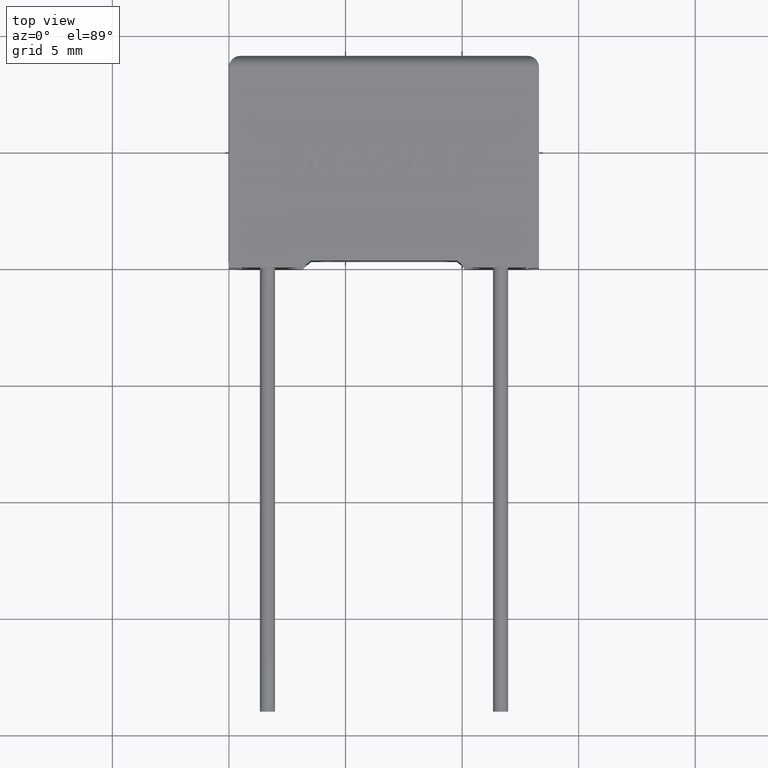
[diagram: clean part render]
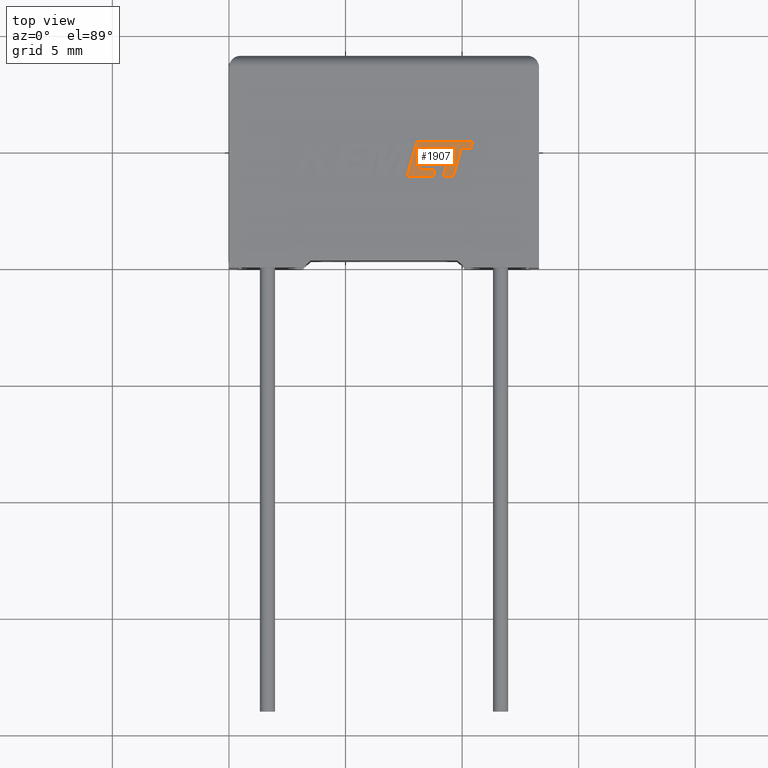
[diagram: same view with one face highlighted and labeled with its STEP entity id]
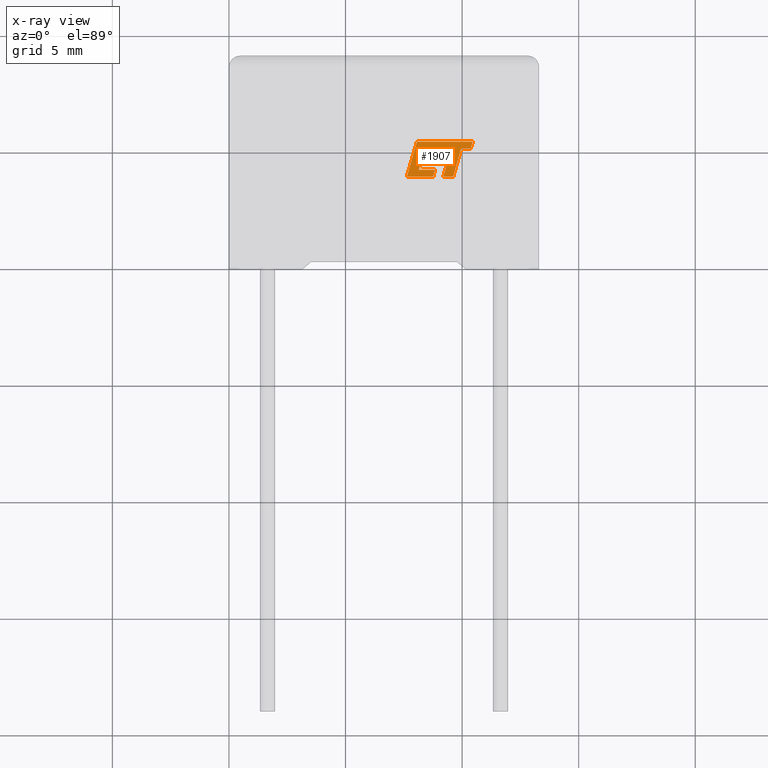
[diagram: x-ray of the same camera — body ghosted, the highlighted face saturated]
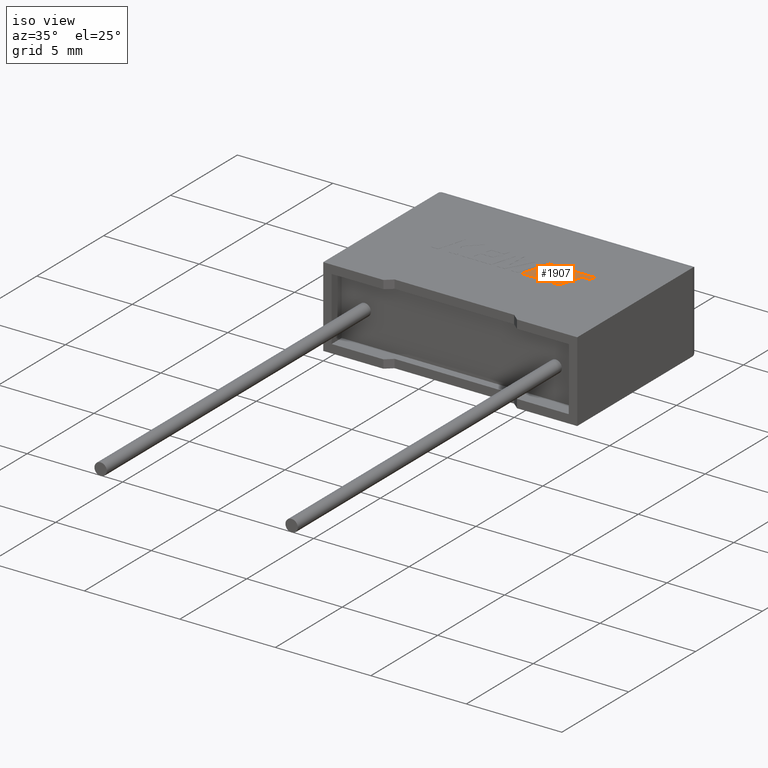
[diagram: same view with one face highlighted and labeled with its STEP entity id]
A machine part, top view. The second image highlights one B-rep face of the part: STEP entity #1907.
The next image is the same camera in x-ray: the body ghosted, the highlighted face saturated — about 0% of this face is hidden behind the body in this view.
A second angle (iso view) of the same face is appended — the face is thin or edge-on in the first view.
In plain terms, the highlighted planar face has unit normal (0, 0, 1).
Its self-contained STEP definition (entity closure, byte-faithful):
#2 = CARTESIAN_POINT ( 'NONE',  ( 9.539431927669216549, 5.117807899964921248, 4.205000000000000071 ) ) ;
#23 = DIRECTION ( 'NONE',  ( 1.000000000000000000, 1.002616505299178603E-15, 0.000000000000000000 ) ) ;
#29 = DIRECTION ( 'NONE',  ( -1.000000000000000000, 0.000000000000000000, 0.000000000000000000 ) ) ;
#40 = VERTEX_POINT ( 'NONE', #79 ) ;
#47 = CARTESIAN_POINT ( 'NONE',  ( 8.323244228363554598, 4.844748178117783688, 4.205000000000000071 ) ) ;
#51 = VERTEX_POINT ( 'NONE', #2901 ) ;
#79 = CARTESIAN_POINT ( 'NONE',  ( 10.45423612614161257, 5.405443973106108579, 4.205000000000000071 ) ) ;
#123 = EDGE_CURVE ( 'NONE', #1462, #1234, #1390, .T. ) ;
#141 = CARTESIAN_POINT ( 'NONE',  ( 9.963695248789788295, 5.117807899961216656, 4.205000000000000071 ) ) ;
#162 = EDGE_CURVE ( 'NONE', #40, #2879, #1177, .T. ) ;
#171 = ORIENTED_EDGE ( 'NONE', *, *, #315, .T. ) ;
#177 = ORIENTED_EDGE ( 'NONE', *, *, #587, .T. ) ;
#260 = CARTESIAN_POINT ( 'NONE',  ( 8.759800966950468393, 3.915729999999954192, 4.205000000000000071 ) ) ;
#276 = DIRECTION ( 'NONE',  ( 0.2762033010290175783, 0.9610992334304890861, 0.000000000000000000 ) ) ;
#290 = CARTESIAN_POINT ( 'NONE',  ( 8.840238147259444901, 4.199203342610755563, 4.205000000000000071 ) ) ;
#315 = EDGE_CURVE ( 'NONE', #877, #2001, #468, .T. ) ;
#351 = VECTOR ( 'NONE', #2455, 1000.000000000000227 ) ;
#354 = VECTOR ( 'NONE', #960, 1000.000000000000000 ) ;
#356 = CARTESIAN_POINT ( 'NONE',  ( 8.062772351167032170, 5.405443973106108579, 4.205000000000000071 ) ) ;
#361 = LINE ( 'NONE', #1290, #495 ) ;
#421 = EDGE_LOOP ( 'NONE', ( #3045, #2244, #1407, #2097, #1427, #177, #1591, #1226, #1214, #1523, #2748, #2023, #2600, #2725, #171, #2165, #891 ) ) ;
#440 = EDGE_CURVE ( 'NONE', #1071, #2858, #1776, .T. ) ;
#445 = VECTOR ( 'NONE', #23, 1000.000000000000000 ) ;
#447 = AXIS2_PLACEMENT_3D ( 'NONE', #1948, #2673, #510 ) ;
#464 = CARTESIAN_POINT ( 'NONE',  ( 8.323244228363554598, 4.844748178117783688, 4.205000000000000071 ) ) ;
#468 = LINE ( 'NONE', #1837, #2015 ) ;
#474 = LINE ( 'NONE', #1897, #354 ) ;
#475 = FACE_OUTER_BOUND ( 'NONE', #421, .T. ) ;
#495 = VECTOR ( 'NONE', #2723, 1000.000000000000000 ) ;
#510 = DIRECTION ( 'NONE',  ( 1.000000000000000000, 0.000000000000000000, 0.000000000000000000 ) ) ;
#522 = CARTESIAN_POINT ( 'NONE',  ( 7.634278353863061639, 3.915729999999953304, 4.205000000000000071 ) ) ;
#539 = CARTESIAN_POINT ( 'NONE',  ( 8.403871653158185850, 5.121834741574651240, 4.205000000000000071 ) ) ;
#545 = VECTOR ( 'NONE', #694, 1000.000000000000114 ) ;
#565 = CARTESIAN_POINT ( 'NONE',  ( 8.244673255864219286, 4.569400992813650753, 4.205000000000000071 ) ) ;
#584 = DIRECTION ( 'NONE',  ( 1.000000000000000000, 5.694109626320595965E-16, 0.000000000000000000 ) ) ;
#587 = EDGE_CURVE ( 'NONE', #2794, #1246, #813, .T. ) ;
#607 = DIRECTION ( 'NONE',  ( 0.9999891854650020395, -0.004650693823678666954, 0.000000000000000000 ) ) ;
#615 = DIRECTION ( 'NONE',  ( 1.000000000000000000, 0.000000000000000000, 0.000000000000000000 ) ) ;
#694 = DIRECTION ( 'NONE',  ( 0.2729786930694848013, 0.9620200793798827643, 0.000000000000000000 ) ) ;
#702 = VECTOR ( 'NONE', #2236, 1000.000000000000000 ) ;
#723 = CARTESIAN_POINT ( 'NONE',  ( 8.759800966950468393, 3.915729999999954192, 4.205000000000000071 ) ) ;
#738 = CARTESIAN_POINT ( 'NONE',  ( 8.962547232894863214, 4.844748178117783688, 4.205000000000000071 ) ) ;
#741 = VECTOR ( 'NONE', #29, 1000.000000000000000 ) ;
#752 = VECTOR ( 'NONE', #584, 1000.000000000000000 ) ;
#774 = DIRECTION ( 'NONE',  ( -1.000000000000000000, 0.000000000000000000, 0.000000000000000000 ) ) ;
#788 = EDGE_CURVE ( 'NONE', #2001, #2890, #361, .T. ) ;
#813 = LINE ( 'NONE', #141, #351 ) ;
#836 = CARTESIAN_POINT ( 'NONE',  ( 8.883885667783385287, 4.569400992813651641, 4.205000000000000071 ) ) ;
#877 = VERTEX_POINT ( 'NONE', #836 ) ;
#878 = EDGE_CURVE ( 'NONE', #51, #2782, #1739, .T. ) ;
#891 = ORIENTED_EDGE ( 'NONE', *, *, #1667, .T. ) ;
#938 = EDGE_CURVE ( 'NONE', #2858, #2794, #1272, .T. ) ;
#955 = VECTOR ( 'NONE', #276, 1000.000000000000114 ) ;
#960 = DIRECTION ( 'NONE',  ( 0.2745159998572630489, 0.9615825319869153454, 0.000000000000000000 ) ) ;
#1017 = LINE ( 'NONE', #290, #1328 ) ;
#1071 = VERTEX_POINT ( 'NONE', #2594 ) ;
#1091 = VECTOR ( 'NONE', #1873, 1000.000000000000114 ) ;
#1103 = EDGE_CURVE ( 'NONE', #1857, #2061, #474, .T. ) ;
#1155 = LINE ( 'NONE', #2, #2975 ) ;
#1177 = LINE ( 'NONE', #2148, #741 ) ;
#1181 = PLANE ( 'NONE',  #447 ) ;
#1213 = CARTESIAN_POINT ( 'NONE',  ( 8.062772351167032170, 5.405443973106108579, 4.205000000000000071 ) ) ;
#1214 = ORIENTED_EDGE ( 'NONE', *, *, #2124, .T. ) ;
#1226 = ORIENTED_EDGE ( 'NONE', *, *, #162, .T. ) ;
#1234 = VERTEX_POINT ( 'NONE', #2802 ) ;
#1246 = VERTEX_POINT ( 'NONE', #3042 ) ;
#1272 = LINE ( 'NONE', #2223, #1091 ) ;
#1290 = CARTESIAN_POINT ( 'NONE',  ( 8.962547232894863214, 4.844748178117783688, 4.205000000000000071 ) ) ;
#1328 = VECTOR ( 'NONE', #774, 1000.000000000000000 ) ;
#1390 = LINE ( 'NONE', #260, #545 ) ;
#1407 = ORIENTED_EDGE ( 'NONE', *, *, #2636, .T. ) ;
#1427 = ORIENTED_EDGE ( 'NONE', *, *, #938, .T. ) ;
#1462 = VERTEX_POINT ( 'NONE', #723 ) ;
#1491 = CARTESIAN_POINT ( 'NONE',  ( 10.37156518682130013, 5.117775519790328076, 4.205000000000000071 ) ) ;
#1523 = ORIENTED_EDGE ( 'NONE', *, *, #2597, .T. ) ;
#1591 = ORIENTED_EDGE ( 'NONE', *, *, #2857, .T. ) ;
#1614 = CARTESIAN_POINT ( 'NONE',  ( 8.138987914554755676, 4.199203342610755563, 4.205000000000000071 ) ) ;
#1646 = EDGE_CURVE ( 'NONE', #2061, #877, #1843, .T. ) ;
#1662 = DIRECTION ( 'NONE',  ( -0.2763173343569615414, -0.9610664548999008350, 0.000000000000000000 ) ) ;
#1667 = EDGE_CURVE ( 'NONE', #2890, #1731, #2785, .T. ) ;
#1731 = VERTEX_POINT ( 'NONE', #539 ) ;
#1739 = LINE ( 'NONE', #1764, #1871 ) ;
#1752 = LINE ( 'NONE', #2724, #752 ) ;
#1764 = CARTESIAN_POINT ( 'NONE',  ( 9.086541341115891512, 5.119914178197026544, 4.205000000000000071 ) ) ;
#1776 = LINE ( 'NONE', #2733, #1968 ) ;
#1837 = CARTESIAN_POINT ( 'NONE',  ( 8.883885667783385287, 4.569400992813651641, 4.205000000000000071 ) ) ;
#1843 = LINE ( 'NONE', #2333, #445 ) ;
#1857 = VERTEX_POINT ( 'NONE', #1614 ) ;
#1871 = VECTOR ( 'NONE', #607, 1000.000000000000227 ) ;
#1873 = DIRECTION ( 'NONE',  ( 0.2762437428917223214, 0.9610876102172850599, 0.000000000000000000 ) ) ;
#1897 = CARTESIAN_POINT ( 'NONE',  ( 8.138987914554755676, 4.199203342610755563, 4.205000000000000071 ) ) ;
#1907 = ADVANCED_FACE ( 'NONE', ( #475 ), #1181, .T. ) ;
#1917 = CARTESIAN_POINT ( 'NONE',  ( 9.539431927669216549, 5.117807899964921248, 4.205000000000000071 ) ) ;
#1948 = CARTESIAN_POINT ( 'NONE',  ( -0.1616998804721296312, -0.9059898439282781935, 4.204999999999998295 ) ) ;
#1968 = VECTOR ( 'NONE', #615, 1000.000000000000000 ) ;
#2001 = VERTEX_POINT ( 'NONE', #738 ) ;
#2015 = VECTOR ( 'NONE', #2026, 1000.000000000000227 ) ;
#2023 = ORIENTED_EDGE ( 'NONE', *, *, #2787, .T. ) ;
#2026 = DIRECTION ( 'NONE',  ( 0.2746918797667269874, 0.9615323037684286867, 0.000000000000000000 ) ) ;
#2037 = EDGE_CURVE ( 'NONE', #1731, #51, #2191, .T. ) ;
#2061 = VERTEX_POINT ( 'NONE', #565 ) ;
#2070 = VECTOR ( 'NONE', #2104, 1000.000000000000227 ) ;
#2097 = ORIENTED_EDGE ( 'NONE', *, *, #440, .T. ) ;
#2104 = DIRECTION ( 'NONE',  ( 0.2793947940814923148, 0.9601763114346033579, 0.000000000000000000 ) ) ;
#2124 = EDGE_CURVE ( 'NONE', #2879, #2848, #2461, .T. ) ;
#2148 = CARTESIAN_POINT ( 'NONE',  ( 10.45423612614161257, 5.405443973106108579, 4.205000000000000071 ) ) ;
#2165 = ORIENTED_EDGE ( 'NONE', *, *, #788, .T. ) ;
#2177 = CARTESIAN_POINT ( 'NONE',  ( 9.963695248789788295, 5.117807899961216656, 4.205000000000000071 ) ) ;
#2191 = LINE ( 'NONE', #2390, #2368 ) ;
#2192 = LINE ( 'NONE', #1491, #955 ) ;
#2223 = CARTESIAN_POINT ( 'NONE',  ( 9.618184085392680771, 3.915729999999954192, 4.205000000000000071 ) ) ;
#2236 = DIRECTION ( 'NONE',  ( -0.2764273280489764617, -0.9610348236706636182, 0.000000000000000000 ) ) ;
#2244 = ORIENTED_EDGE ( 'NONE', *, *, #878, .T. ) ;
#2333 = CARTESIAN_POINT ( 'NONE',  ( 8.244673255864219286, 4.569400992813650753, 4.205000000000000071 ) ) ;
#2368 = VECTOR ( 'NONE', #2609, 999.9999999999998863 ) ;
#2390 = CARTESIAN_POINT ( 'NONE',  ( 8.403871653158185850, 5.121834741574651240, 4.205000000000000071 ) ) ;
#2434 = CARTESIAN_POINT ( 'NONE',  ( 9.618184085392680771, 3.915729999999954192, 4.205000000000000071 ) ) ;
#2455 = DIRECTION ( 'NONE',  ( 0.9999999968487351953, -7.938847109813992875E-05, 0.000000000000000000 ) ) ;
#2461 = LINE ( 'NONE', #356, #702 ) ;
#2594 = CARTESIAN_POINT ( 'NONE',  ( 9.193821112398040896, 3.915729999999954192, 4.205000000000000071 ) ) ;
#2597 = EDGE_CURVE ( 'NONE', #2848, #1462, #1752, .T. ) ;
#2600 = ORIENTED_EDGE ( 'NONE', *, *, #1103, .T. ) ;
#2609 = DIRECTION ( 'NONE',  ( 0.9999960426590096541, -0.002813301676021315138, 0.000000000000000000 ) ) ;
#2636 = EDGE_CURVE ( 'NONE', #2782, #1071, #1155, .T. ) ;
#2673 = DIRECTION ( 'NONE',  ( 0.000000000000000000, 0.000000000000000000, 1.000000000000000000 ) ) ;
#2723 = DIRECTION ( 'NONE',  ( -1.000000000000000000, 0.000000000000000000, 0.000000000000000000 ) ) ;
#2724 = CARTESIAN_POINT ( 'NONE',  ( 7.634278353863061639, 3.915729999999953304, 4.205000000000000071 ) ) ;
#2725 = ORIENTED_EDGE ( 'NONE', *, *, #1646, .T. ) ;
#2733 = CARTESIAN_POINT ( 'NONE',  ( 9.193821112398040896, 3.915729999999954192, 4.205000000000000071 ) ) ;
#2748 = ORIENTED_EDGE ( 'NONE', *, *, #123, .T. ) ;
#2782 = VERTEX_POINT ( 'NONE', #1917 ) ;
#2785 = LINE ( 'NONE', #464, #2070 ) ;
#2787 = EDGE_CURVE ( 'NONE', #1234, #1857, #1017, .T. ) ;
#2794 = VERTEX_POINT ( 'NONE', #2177 ) ;
#2802 = CARTESIAN_POINT ( 'NONE',  ( 8.840238147259444901, 4.199203342610755563, 4.205000000000000071 ) ) ;
#2848 = VERTEX_POINT ( 'NONE', #522 ) ;
#2857 = EDGE_CURVE ( 'NONE', #1246, #40, #2192, .T. ) ;
#2858 = VERTEX_POINT ( 'NONE', #2434 ) ;
#2879 = VERTEX_POINT ( 'NONE', #1213 ) ;
#2890 = VERTEX_POINT ( 'NONE', #47 ) ;
#2901 = CARTESIAN_POINT ( 'NONE',  ( 9.086541341115891512, 5.119914178197026544, 4.205000000000000071 ) ) ;
#2975 = VECTOR ( 'NONE', #1662, 1000.000000000000000 ) ;
#3042 = CARTESIAN_POINT ( 'NONE',  ( 10.37156518682130013, 5.117775519790328076, 4.205000000000000071 ) ) ;
#3045 = ORIENTED_EDGE ( 'NONE', *, *, #2037, .T. ) ;